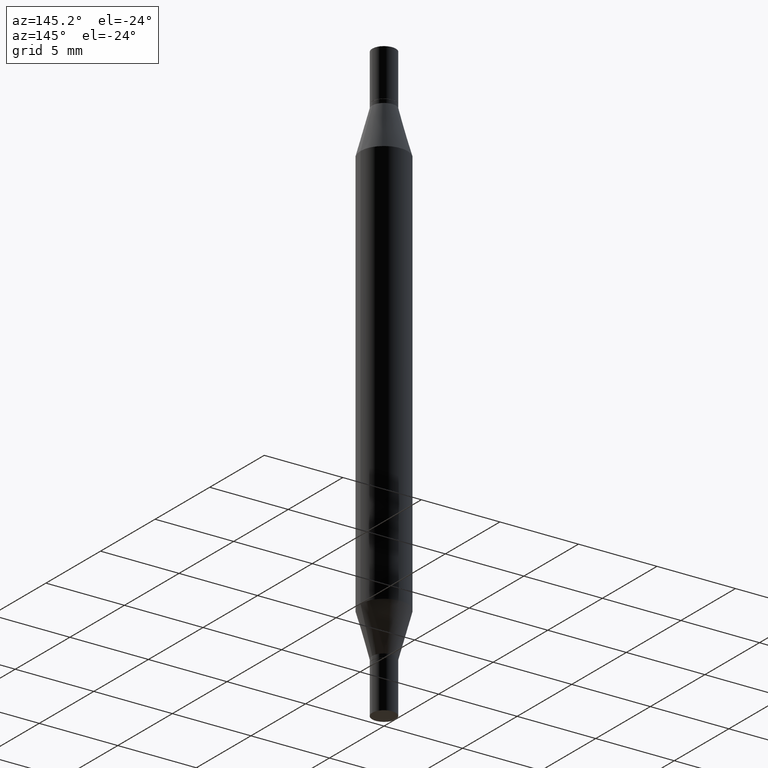
[diagram: clean part render]
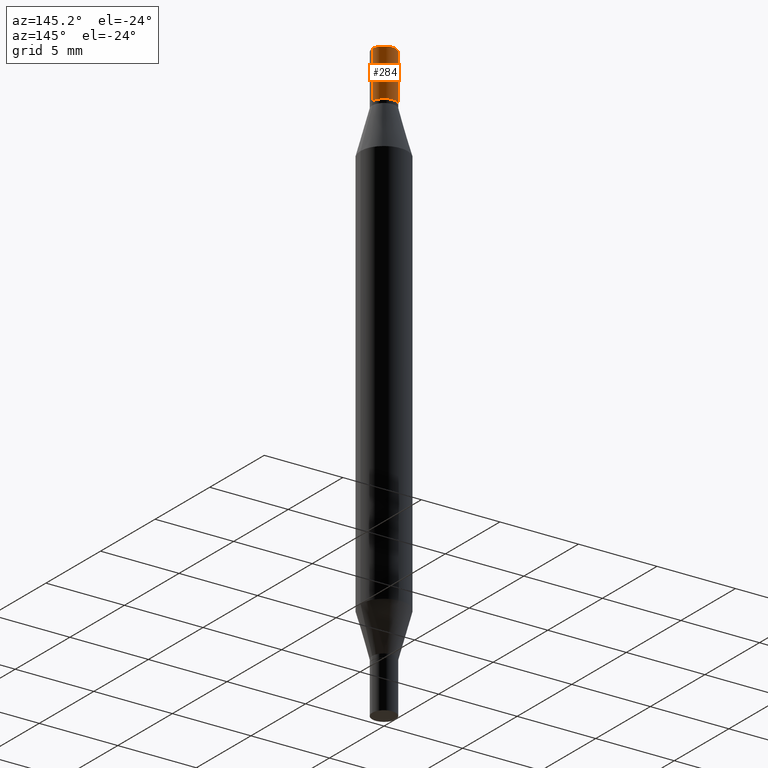
[diagram: same view with one face highlighted and labeled with its STEP entity id]
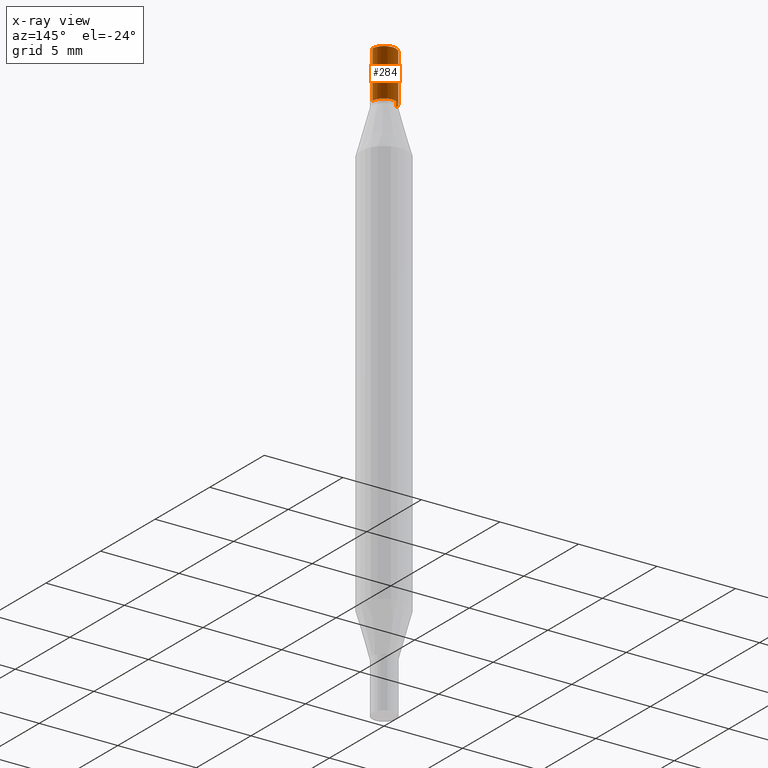
[diagram: x-ray of the same camera — body ghosted, the highlighted face saturated]
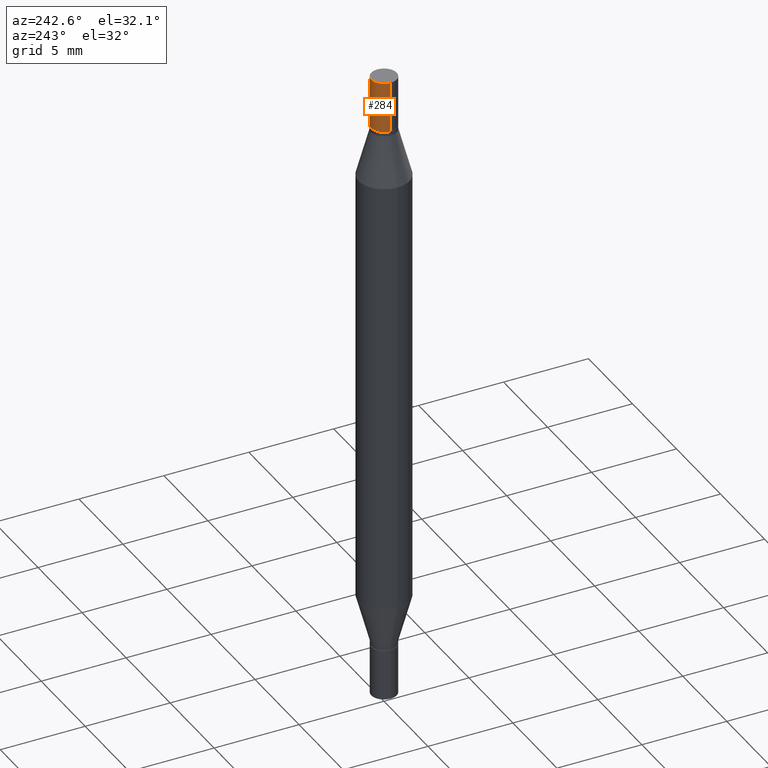
[diagram: same view with one face highlighted and labeled with its STEP entity id]
A machine part, auxiliary view. The second image highlights one B-rep face of the part: STEP entity #284.
The next image is the same camera in x-ray: the body ghosted, the highlighted face saturated — about 0% of this face is hidden behind the body in this view.
A second angle (auxiliary view) of the same face is appended — the face is thin or edge-on in the first view.
In plain terms, the highlighted cylindrical surface (edge-blend (fillet) strip) has radius 0.7506 mm, axis along (-0, -0, -1).
Its self-contained STEP definition (entity closure, byte-faithful):
#1 = AXIS2_PLACEMENT_3D ( 'NONE', #169, #833, #771 ) ;
#42 = EDGE_CURVE ( 'NONE', #688, #316, #468, .T. ) ;
#147 = VECTOR ( 'NONE', #687, 39.37007874015748143 ) ;
#159 = ORIENTED_EDGE ( 'NONE', *, *, #386, .T. ) ;
#169 = CARTESIAN_POINT ( 'NONE',  ( 3.369856014923117948E-29, -4.121399959508538653E-16, -0.1181000000000000383 ) ) ;
#180 = LINE ( 'NONE', #717, #685 ) ;
#225 = DIRECTION ( 'NONE',  ( 1.000000000000000000, -6.982962677686261977E-15, 0.000000000000000000 ) ) ;
#234 = CARTESIAN_POINT ( 'NONE',  ( -0.02954999999999999988, -3.221189259251762717E-18, 7.347294627798473966E-31 ) ) ;
#247 = VERTEX_POINT ( 'NONE', #441 ) ;
#284 = ADVANCED_FACE ( 'NONE', ( #296 ), #607, .T. ) ;
#296 = FACE_OUTER_BOUND ( 'NONE', #528, .T. ) ;
#316 = VERTEX_POINT ( 'NONE', #234 ) ;
#336 = EDGE_CURVE ( 'NONE', #316, #381, #926, .T. ) ;
#369 = AXIS2_PLACEMENT_3D ( 'NONE', #579, #575, #872 ) ;
#381 = VERTEX_POINT ( 'NONE', #548 ) ;
#386 = EDGE_CURVE ( 'NONE', #247, #381, #952, .T. ) ;
#395 = ORIENTED_EDGE ( 'NONE', *, *, #336, .F. ) ;
#397 = CARTESIAN_POINT ( 'NONE',  ( -0.02954999999999999988, -5.021119700973134755E-15, -1.496099999999999985 ) ) ;
#441 = CARTESIAN_POINT ( 'NONE',  ( 0.02954999999999999988, -6.184865430764830320E-16, -0.1181000000000000383 ) ) ;
#450 = ORIENTED_EDGE ( 'NONE', *, *, #42, .F. ) ;
#468 = CIRCLE ( 'NONE', #369, 0.02954999999999999988 ) ;
#528 = EDGE_LOOP ( 'NONE', ( #395, #450, #616, #159 ) ) ;
#548 = CARTESIAN_POINT ( 'NONE',  ( -0.02954999999999999988, -3.221189259251762717E-18, -0.1181000000000000383 ) ) ;
#575 = DIRECTION ( 'NONE',  ( 2.445468806185136597E-29, 3.491805094961124077E-15, 1.000000000000000000 ) ) ;
#579 = CARTESIAN_POINT ( 'NONE',  ( 3.658665880933582389E-29, 2.421857640538043390E-19, 0.000000000000000000 ) ) ;
#607 = CYLINDRICAL_SURFACE ( 'NONE', #866, 0.02954999999999999988 ) ;
#616 = ORIENTED_EDGE ( 'NONE', *, *, #895, .T. ) ;
#685 = VECTOR ( 'NONE', #940, 39.37007874015748143 ) ;
#687 = DIRECTION ( 'NONE',  ( -2.445468806185136877E-29, -3.491805094961123683E-15, -1.000000000000000000 ) ) ;
#688 = VERTEX_POINT ( 'NONE', #740 ) ;
#717 = CARTESIAN_POINT ( 'NONE',  ( 0.02954999999999999988, -5.430193963932912651E-15, -1.496099999999999985 ) ) ;
#740 = CARTESIAN_POINT ( 'NONE',  ( 0.02954999999999999988, -2.061043613615753919E-16, 6.680595706058740339E-35 ) ) ;
#771 = DIRECTION ( 'NONE',  ( 1.000000000000000000, -6.982962677686265922E-15, 0.000000000000000000 ) ) ;
#833 = DIRECTION ( 'NONE',  ( 2.445468806185136597E-29, 3.491805094961124077E-15, 1.000000000000000000 ) ) ;
#866 = AXIS2_PLACEMENT_3D ( 'NONE', #974, #904, #225 ) ;
#872 = DIRECTION ( 'NONE',  ( 1.000000000000000000, -6.982962677686266711E-15, 2.260776888683160832E-33 ) ) ;
#895 = EDGE_CURVE ( 'NONE', #688, #247, #180, .T. ) ;
#904 = DIRECTION ( 'NONE',  ( -2.445468806185136597E-29, -3.491805094961124077E-15, -1.000000000000000000 ) ) ;
#926 = LINE ( 'NONE', #397, #147 ) ;
#940 = DIRECTION ( 'NONE',  ( -2.445468806185136877E-29, -3.491805094961123683E-15, -1.000000000000000000 ) ) ;
#952 = CIRCLE ( 'NONE', #1, 0.02954999999999999988 ) ;
#974 = CARTESIAN_POINT ( 'NONE',  ( 0.000000000000000000, -5.223847416807283040E-15, -1.496099999999999985 ) ) ;